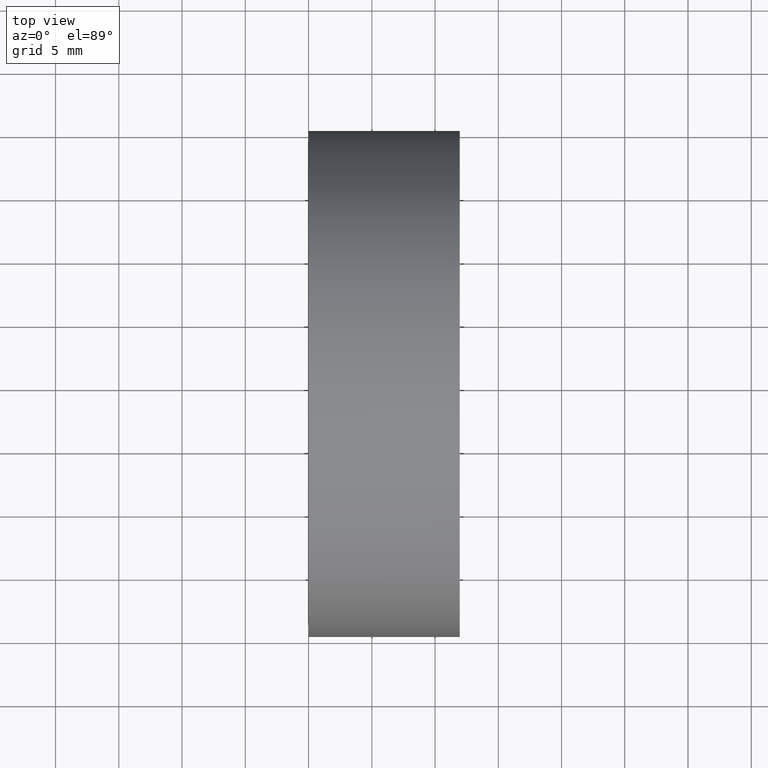
[diagram: clean part render]
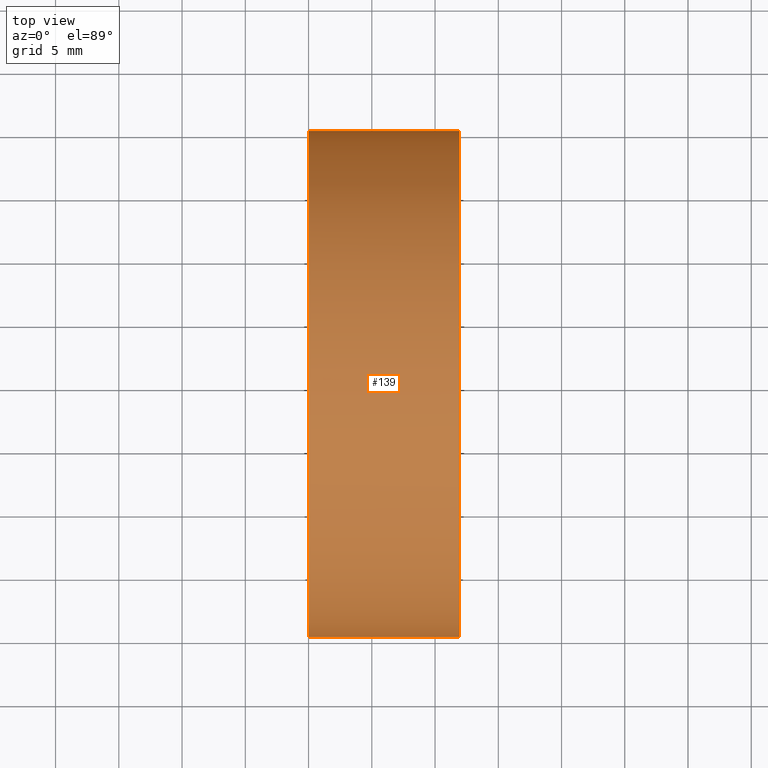
[diagram: same view with one face highlighted and labeled with its STEP entity id]
A machine part, top view. The second image highlights one B-rep face of the part: STEP entity #139.
In plain terms, the highlighted cylindrical surface (partial cylindrical patch) has radius 20 mm, axis along (-1, 0, -0).
Its self-contained STEP definition (entity closure, byte-faithful):
#1 = AXIS2_PLACEMENT_3D ( 'NONE', #26, #116, #37 ) ;
#3 = DIRECTION ( 'NONE',  ( -1.000000000000000000, 6.488933942079480100E-016, -0.0000000000000000000 ) ) ;
#5 = VERTEX_POINT ( 'NONE', #89 ) ;
#8 = DIRECTION ( 'NONE',  ( 0.0000000000000000000, -1.000000000000000000, 0.0000000000000000000 ) ) ;
#18 = LINE ( 'NONE', #145, #125 ) ;
#21 = CARTESIAN_POINT ( 'NONE',  ( 126.9537358582576400, 65.15745182658618300, 0.0000000000000000000 ) ) ;
#24 = CARTESIAN_POINT ( 'NONE',  ( 126.9537358582576400, 45.15745182658619700, 0.0000000000000000000 ) ) ;
#26 = CARTESIAN_POINT ( 'NONE',  ( 114.9754472601862100, 65.15745182658619700, 0.0000000000000000000 ) ) ;
#30 = VERTEX_POINT ( 'NONE', #24 ) ;
#37 = DIRECTION ( 'NONE',  ( -6.938893903907227400E-016, -1.000000000000000000, 0.0000000000000000000 ) ) ;
#39 = EDGE_CURVE ( 'NONE', #91, #102, #18, .T. ) ;
#42 = ORIENTED_EDGE ( 'NONE', *, *, #109, .F. ) ;
#47 = ORIENTED_EDGE ( 'NONE', *, *, #93, .T. ) ;
#60 = CYLINDRICAL_SURFACE ( 'NONE', #105, 20.00000000000001100 ) ;
#63 = VECTOR ( 'NONE', #3, 1000.000000000000000 ) ;
#67 = LINE ( 'NONE', #88, #63 ) ;
#82 = EDGE_CURVE ( 'NONE', #5, #102, #127, .T. ) ;
#83 = FACE_OUTER_BOUND ( 'NONE', #86, .T. ) ;
#86 = EDGE_LOOP ( 'NONE', ( #47, #154, #142, #42 ) ) ;
#88 = CARTESIAN_POINT ( 'NONE',  ( 110.0147892488423500, 45.15745182658618300, 0.0000000000000000000 ) ) ;
#89 = CARTESIAN_POINT ( 'NONE',  ( 114.9754472601862000, 45.15745182658619000, 0.0000000000000000000 ) ) ;
#91 = VERTEX_POINT ( 'NONE', #103 ) ;
#92 = AXIS2_PLACEMENT_3D ( 'NONE', #21, #149, #8 ) ;
#93 = EDGE_CURVE ( 'NONE', #30, #91, #104, .T. ) ;
#100 = DIRECTION ( 'NONE',  ( -1.000000000000000000, 6.488933942079480100E-016, -0.0000000000000000000 ) ) ;
#102 = VERTEX_POINT ( 'NONE', #113 ) ;
#103 = CARTESIAN_POINT ( 'NONE',  ( 126.9537358582576400, 85.15745182658621100, 2.449293598294705700E-015 ) ) ;
#104 = CIRCLE ( 'NONE', #92, 20.00000000000001800 ) ;
#105 = AXIS2_PLACEMENT_3D ( 'NONE', #137, #100, #132 ) ;
#109 = EDGE_CURVE ( 'NONE', #30, #5, #67, .T. ) ;
#113 = CARTESIAN_POINT ( 'NONE',  ( 114.9754472601862300, 85.15745182658619700, 2.449293598294710100E-015 ) ) ;
#116 = DIRECTION ( 'NONE',  ( -1.000000000000000000, 6.488933942079480100E-016, -0.0000000000000000000 ) ) ;
#125 = VECTOR ( 'NONE', #151, 1000.000000000000000 ) ;
#127 = CIRCLE ( 'NONE', #1, 20.00000000000000400 ) ;
#132 = DIRECTION ( 'NONE',  ( -6.938893903907224400E-016, -1.000000000000000000, 0.0000000000000000000 ) ) ;
#137 = CARTESIAN_POINT ( 'NONE',  ( 110.0147892488423600, 65.15745182658619700, 0.0000000000000000000 ) ) ;
#139 = ADVANCED_FACE ( 'NONE', ( #83 ), #60, .T. ) ;
#142 = ORIENTED_EDGE ( 'NONE', *, *, #82, .F. ) ;
#145 = CARTESIAN_POINT ( 'NONE',  ( 110.0147892488423800, 85.15745182658621100, 2.449293598294708100E-015 ) ) ;
#149 = DIRECTION ( 'NONE',  ( -1.000000000000000000, 6.488933942079480100E-016, -0.0000000000000000000 ) ) ;
#151 = DIRECTION ( 'NONE',  ( -1.000000000000000000, 6.488933942079480100E-016, -0.0000000000000000000 ) ) ;
#154 = ORIENTED_EDGE ( 'NONE', *, *, #39, .T. ) ;